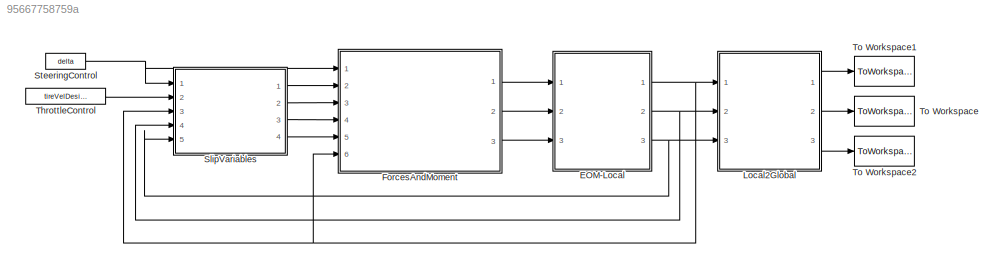
MODEL slx_95667758759a
KIND model
CONFIG AbsTol = auto
CONFIG EnableMultiTasking = off
CONFIG FixedStep = auto
CONFIG MaxStep = auto
CONFIG MinStep = auto
CONFIG RelTol = 1e-3
CONFIG SampleTimeConstraint = Unconstrained
CONFIG Solver = ode15s
CONFIG SolverName = ode15s
CONFIG StartTime = 0.0
CONFIG StopTime = 15
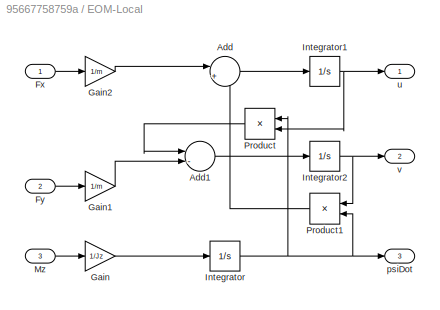
BLOCK [SubSystem] EOM-Local
  Ports = [3, 3]
  RequestExecContextInheritance = off
BLOCK [Sum] EOM-Local/Add
  IconShape = round
  InputSameDT = off
  Inputs = |++
  OutDataTypeStr = Inherit: Inherit via internal rule
  Ports = [2, 1]
  SaturateOnIntegerOverflow = off
BLOCK [Sum] EOM-Local/Add1
  IconShape = round
  InputSameDT = off
  Inputs = |-+
  OutDataTypeStr = Inherit: Inherit via internal rule
  Ports = [2, 1]
  SaturateOnIntegerOverflow = off
BLOCK [Inport] EOM-Local/Fx
  IconDisplay = Port number and signal name
BLOCK [Inport] EOM-Local/Fy
  IconDisplay = Port number and signal name
  Port = 2
BLOCK [Gain] EOM-Local/Gain
  Gain = 1/Jz
  OutDataTypeStr = Inherit: Inherit via internal rule
  ParamDataTypeStr = Inherit: Inherit via internal rule
  SaturateOnIntegerOverflow = off
BLOCK [Gain] EOM-Local/Gain1
  Gain = 1/m
  OutDataTypeStr = Inherit: Inherit via internal rule
  ParamDataTypeStr = Inherit: Inherit via internal rule
  SaturateOnIntegerOverflow = off
BLOCK [Gain] EOM-Local/Gain2
  Gain = 1/m
  OutDataTypeStr = Inherit: Inherit via internal rule
  ParamDataTypeStr = Inherit: Inherit via internal rule
  SaturateOnIntegerOverflow = off
BLOCK [Integrator] EOM-Local/Integrator
  InitialCondition = iniPsiDot
  Ports = [1, 1]
BLOCK [Integrator] EOM-Local/Integrator1
  InitialCondition = iniU
  Ports = [1, 1]
BLOCK [Integrator] EOM-Local/Integrator2
  InitialCondition = iniV
  Ports = [1, 1]
BLOCK [Inport] EOM-Local/Mz
  IconDisplay = Port number and signal name
  Port = 3
BLOCK [Product] EOM-Local/Product
  InputSameDT = off
  OutDataTypeStr = Inherit: Inherit via internal rule
  Ports = [2, 1]
  RndMeth = Floor
  SaturateOnIntegerOverflow = off
BLOCK [Product] EOM-Local/Product1
  InputSameDT = off
  OutDataTypeStr = Inherit: Inherit via internal rule
  Ports = [2, 1]
  RndMeth = Floor
  SaturateOnIntegerOverflow = off
BLOCK [Outport] EOM-Local/psiDot
  IconDisplay = Port number
  Port = 3
BLOCK [Outport] EOM-Local/u
  IconDisplay = Port number
BLOCK [Outport] EOM-Local/v
  IconDisplay = Port number
  Port = 2
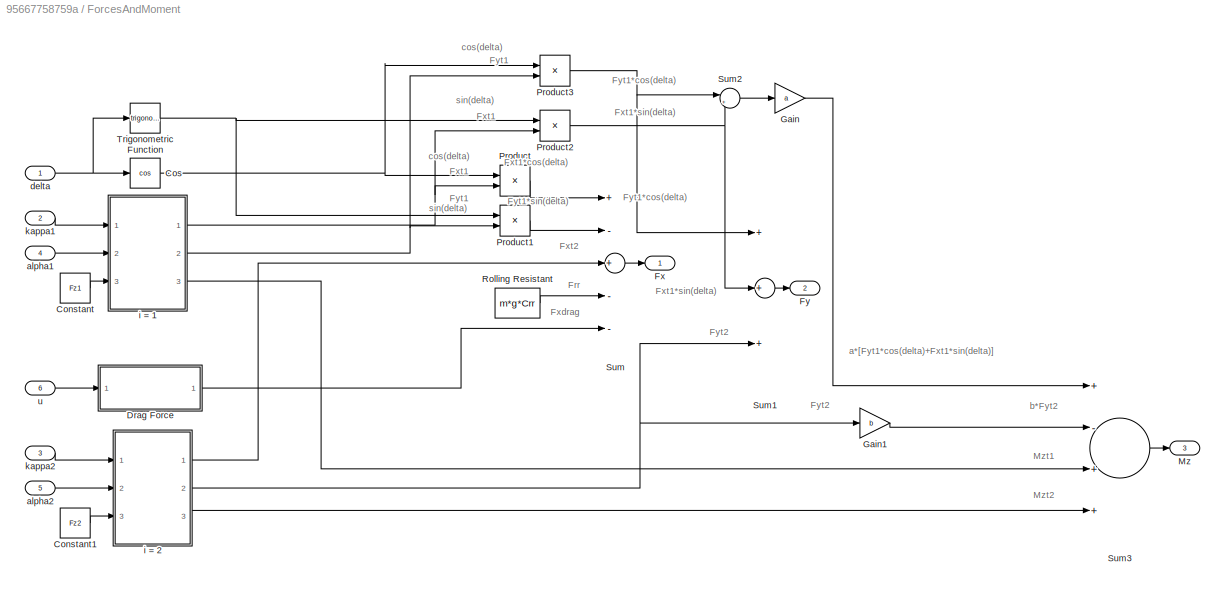
BLOCK [SubSystem] ForcesAndMoment
  Ports = [6, 3]
  RequestExecContextInheritance = off
BLOCK [Constant] ForcesAndMoment/Constant
  Value = Fz1
BLOCK [Constant] ForcesAndMoment/Constant1
  Value = Fz2
BLOCK [Trigonometry] ForcesAndMoment/Cos
  Operator = cos
  Ports = [1, 1]
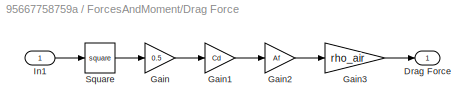
BLOCK [SubSystem] ForcesAndMoment/Drag Force
  Ports = [1, 1]
  RequestExecContextInheritance = off
BLOCK [Outport] ForcesAndMoment/Drag Force/Drag Force
  IconDisplay = Port number
BLOCK [Gain] ForcesAndMoment/Drag Force/Gain
  Gain = 0.5
  OutDataTypeStr = Inherit: Inherit via internal rule
  ParamDataTypeStr = Inherit: Inherit via internal rule
  SaturateOnIntegerOverflow = off
BLOCK [Gain] ForcesAndMoment/Drag Force/Gain1
  Gain = Cd
  OutDataTypeStr = Inherit: Inherit via internal rule
  ParamDataTypeStr = Inherit: Inherit via internal rule
  SaturateOnIntegerOverflow = off
BLOCK [Gain] ForcesAndMoment/Drag Force/Gain2
  Gain = Af
  OutDataTypeStr = Inherit: Inherit via internal rule
  ParamDataTypeStr = Inherit: Inherit via internal rule
  SaturateOnIntegerOverflow = off
BLOCK [Gain] ForcesAndMoment/Drag Force/Gain3
  Gain = rho_air
  OutDataTypeStr = Inherit: Inherit via internal rule
  ParamDataTypeStr = Inherit: Inherit via internal rule
  SaturateOnIntegerOverflow = off
BLOCK [Inport] ForcesAndMoment/Drag Force/In1
  IconDisplay = Port number
BLOCK [Math] ForcesAndMoment/Drag Force/Square
  Operator = square
  Ports = [1, 1]
BLOCK [Outport] ForcesAndMoment/Fx
  IconDisplay = Port number
BLOCK [Outport] ForcesAndMoment/Fy
  IconDisplay = Port number
  Port = 2
BLOCK [Gain] ForcesAndMoment/Gain
  Gain = a
  OutDataTypeStr = Inherit: Inherit via internal rule
  ParamDataTypeStr = Inherit: Inherit via internal rule
  SaturateOnIntegerOverflow = off
BLOCK [Gain] ForcesAndMoment/Gain1
  Gain = b
  OutDataTypeStr = Inherit: Inherit via internal rule
  ParamDataTypeStr = Inherit: Inherit via internal rule
  SaturateOnIntegerOverflow = off
BLOCK [Outport] ForcesAndMoment/Mz
  IconDisplay = Port number
  Port = 3
BLOCK [Product] ForcesAndMoment/Product
  InputSameDT = off
  OutDataTypeStr = Inherit: Inherit via internal rule
  Ports = [2, 1]
  RndMeth = Floor
  SaturateOnIntegerOverflow = off
BLOCK [Product] ForcesAndMoment/Product1
  InputSameDT = off
  OutDataTypeStr = Inherit: Inherit via internal rule
  Ports = [2, 1]
  RndMeth = Floor
  SaturateOnIntegerOverflow = off
BLOCK [Product] ForcesAndMoment/Product2
  InputSameDT = off
  OutDataTypeStr = Inherit: Inherit via internal rule
  Ports = [2, 1]
  RndMeth = Floor
  SaturateOnIntegerOverflow = off
BLOCK [Product] ForcesAndMoment/Product3
  InputSameDT = off
  OutDataTypeStr = Inherit: Inherit via internal rule
  Ports = [2, 1]
  RndMeth = Floor
  SaturateOnIntegerOverflow = off
BLOCK [Constant] ForcesAndMoment/Rolling Resistant
  Value = m*g*Crr
BLOCK [Sum] ForcesAndMoment/Sum
  InputSameDT = off
  Inputs = +-+--
  OutDataTypeStr = Inherit: Inherit via internal rule
  Ports = [5, 1]
  SaturateOnIntegerOverflow = off
BLOCK [Sum] ForcesAndMoment/Sum1
  InputSameDT = off
  Inputs = +++
  OutDataTypeStr = Inherit: Inherit via internal rule
  Ports = [3, 1]
  SaturateOnIntegerOverflow = off
BLOCK [Sum] ForcesAndMoment/Sum2
  IconShape = round
  InputSameDT = off
  Inputs = |++
  OutDataTypeStr = Inherit: Inherit via internal rule
  Ports = [2, 1]
  SaturateOnIntegerOverflow = off
BLOCK [Sum] ForcesAndMoment/Sum3
  InputSameDT = off
  Inputs = +-++
  OutDataTypeStr = Inherit: Inherit via internal rule
  Ports = [4, 1]
  SaturateOnIntegerOverflow = off
BLOCK [Trigonometry] ForcesAndMoment/Trigonometric Function
  Ports = [1, 1]
BLOCK [Inport] ForcesAndMoment/alpha1
  IconDisplay = Port number
  Port = 4
BLOCK [Inport] ForcesAndMoment/alpha2
  IconDisplay = Port number
  Port = 5
BLOCK [Inport] ForcesAndMoment/delta
  IconDisplay = Port number
BLOCK [ModelReference] ForcesAndMoment/i = 1
  ModelNameDialog = TireForces
  ModelReferenceVersion = 1.12
  Ports = [3, 3]
BLOCK [ModelReference] ForcesAndMoment/i = 2
  ModelNameDialog = TireForces
  ModelReferenceVersion = 1.12
  Ports = [3, 3]
BLOCK [Inport] ForcesAndMoment/kappa1
  IconDisplay = Port number
  Port = 2
BLOCK [Inport] ForcesAndMoment/kappa2
  IconDisplay = Port number
  Port = 3
BLOCK [Inport] ForcesAndMoment/u
  IconDisplay = Port number
  Port = 6
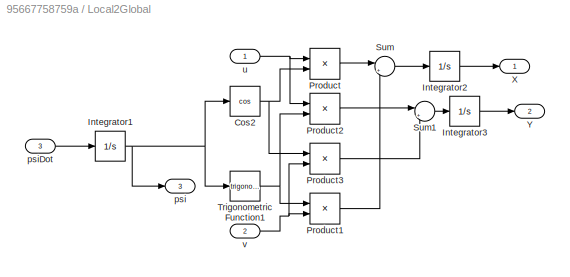
BLOCK [SubSystem] Local2Global
  Ports = [3, 3]
  RequestExecContextInheritance = off
BLOCK [Trigonometry] Local2Global/Cos2
  Operator = cos
  Ports = [1, 1]
BLOCK [Integrator] Local2Global/Integrator1
  Ports = [1, 1]
BLOCK [Integrator] Local2Global/Integrator2
  Ports = [1, 1]
BLOCK [Integrator] Local2Global/Integrator3
  Ports = [1, 1]
BLOCK [Product] Local2Global/Product
  InputSameDT = off
  OutDataTypeStr = Inherit: Inherit via internal rule
  Ports = [2, 1]
  RndMeth = Floor
  SaturateOnIntegerOverflow = off
BLOCK [Product] Local2Global/Product1
  InputSameDT = off
  OutDataTypeStr = Inherit: Inherit via internal rule
  Ports = [2, 1]
  RndMeth = Floor
  SaturateOnIntegerOverflow = off
BLOCK [Product] Local2Global/Product2
  InputSameDT = off
  OutDataTypeStr = Inherit: Inherit via internal rule
  Ports = [2, 1]
  RndMeth = Floor
  SaturateOnIntegerOverflow = off
BLOCK [Product] Local2Global/Product3
  InputSameDT = off
  OutDataTypeStr = Inherit: Inherit via internal rule
  Ports = [2, 1]
  RndMeth = Floor
  SaturateOnIntegerOverflow = off
BLOCK [Sum] Local2Global/Sum
  IconShape = round
  InputSameDT = off
  Inputs = |+-
  OutDataTypeStr = Inherit: Inherit via internal rule
  Ports = [2, 1]
  SaturateOnIntegerOverflow = off
BLOCK [Sum] Local2Global/Sum1
  IconShape = round
  InputSameDT = off
  Inputs = |++
  OutDataTypeStr = Inherit: Inherit via internal rule
  Ports = [2, 1]
  SaturateOnIntegerOverflow = off
BLOCK [Trigonometry] Local2Global/Trigonometric Function1
  Ports = [1, 1]
BLOCK [Outport] Local2Global/X
  IconDisplay = Port number
BLOCK [Outport] Local2Global/Y
  IconDisplay = Port number
  Port = 2
BLOCK [Outport] Local2Global/psi
  IconDisplay = Port number
  Port = 3
BLOCK [Inport] Local2Global/psiDot
  IconDisplay = Port number
  Port = 3
BLOCK [Inport] Local2Global/u
  IconDisplay = Port number
BLOCK [Inport] Local2Global/v
  IconDisplay = Port number
  Port = 2
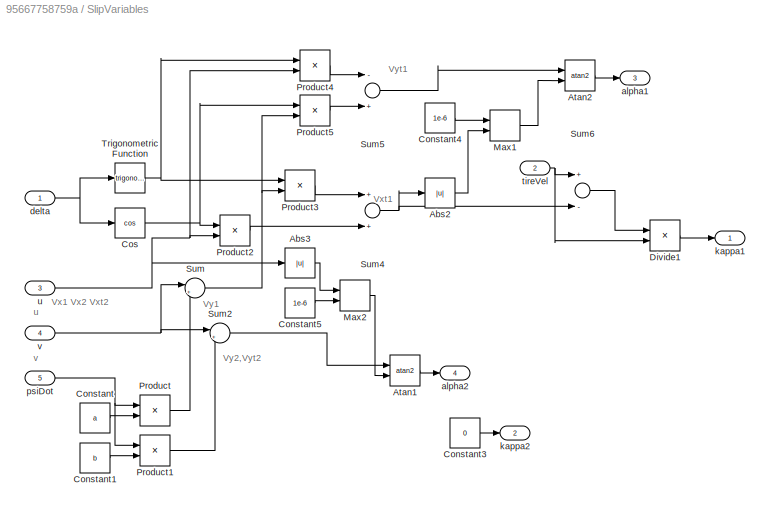
BLOCK [SubSystem] SlipVariables
  Ports = [5, 4]
  RequestExecContextInheritance = off
BLOCK [Abs] SlipVariables/Abs2
  SaturateOnIntegerOverflow = off
BLOCK [Abs] SlipVariables/Abs3
  SaturateOnIntegerOverflow = off
BLOCK [Trigonometry] SlipVariables/Atan1
  Operator = atan2
  Ports = [2, 1]
BLOCK [Trigonometry] SlipVariables/Atan2
  Operator = atan2
  Ports = [2, 1]
BLOCK [Constant] SlipVariables/Constant
  Value = a
BLOCK [Constant] SlipVariables/Constant1
  Value = b
BLOCK [Constant] SlipVariables/Constant3
  Value = 0
BLOCK [Constant] SlipVariables/Constant4
  Value = 1e-6
BLOCK [Constant] SlipVariables/Constant5
  Value = 1e-6
BLOCK [Trigonometry] SlipVariables/Cos
  Operator = cos
  Ports = [1, 1]
BLOCK [Product] SlipVariables/Divide1
  InputSameDT = off
  Inputs = */
  OutDataTypeStr = Inherit: Inherit via internal rule
  Ports = [2, 1]
  RndMeth = Floor
  SaturateOnIntegerOverflow = off
BLOCK [MinMax] SlipVariables/Max1
  Function = max
  InputSameDT = off
  Inputs = 2
  Ports = [2, 1]
  SaturateOnIntegerOverflow = off
BLOCK [MinMax] SlipVariables/Max2
  Function = max
  InputSameDT = off
  Inputs = 2
  Ports = [2, 1]
  SaturateOnIntegerOverflow = off
BLOCK [Product] SlipVariables/Product
  InputSameDT = off
  OutDataTypeStr = Inherit: Inherit via internal rule
  Ports = [2, 1]
  RndMeth = Floor
  SaturateOnIntegerOverflow = off
BLOCK [Product] SlipVariables/Product1
  InputSameDT = off
  OutDataTypeStr = Inherit: Inherit via internal rule
  Ports = [2, 1]
  RndMeth = Floor
  SaturateOnIntegerOverflow = off
BLOCK [Product] SlipVariables/Product2
  InputSameDT = off
  OutDataTypeStr = Inherit: Inherit via internal rule
  Ports = [2, 1]
  RndMeth = Floor
  SaturateOnIntegerOverflow = off
BLOCK [Product] SlipVariables/Product3
  InputSameDT = off
  OutDataTypeStr = Inherit: Inherit via internal rule
  Ports = [2, 1]
  RndMeth = Floor
  SaturateOnIntegerOverflow = off
BLOCK [Product] SlipVariables/Product4
  InputSameDT = off
  OutDataTypeStr = Inherit: Inherit via internal rule
  Ports = [2, 1]
  RndMeth = Floor
  SaturateOnIntegerOverflow = off
BLOCK [Product] SlipVariables/Product5
  InputSameDT = off
  OutDataTypeStr = Inherit: Inherit via internal rule
  Ports = [2, 1]
  RndMeth = Floor
  SaturateOnIntegerOverflow = off
BLOCK [Sum] SlipVariables/Sum
  IconShape = round
  InputSameDT = off
  Inputs = |++
  OutDataTypeStr = Inherit: Inherit via internal rule
  Ports = [2, 1]
  SaturateOnIntegerOverflow = off
BLOCK [Sum] SlipVariables/Sum2
  IconShape = round
  InputSameDT = off
  Inputs = |+-
  OutDataTypeStr = Inherit: Inherit via internal rule
  Ports = [2, 1]
  SaturateOnIntegerOverflow = off
BLOCK [Sum] SlipVariables/Sum4
  InputSameDT = off
  OutDataTypeStr = Inherit: Inherit via internal rule
  Ports = [2, 1]
  SaturateOnIntegerOverflow = off
BLOCK [Sum] SlipVariables/Sum5
  InputSameDT = off
  Inputs = -+
  OutDataTypeStr = Inherit: Inherit via internal rule
  Ports = [2, 1]
  SaturateOnIntegerOverflow = off
BLOCK [Sum] SlipVariables/Sum6
  InputSameDT = off
  Inputs = +-
  OutDataTypeStr = Inherit: Inherit via internal rule
  Ports = [2, 1]
  SaturateOnIntegerOverflow = off
BLOCK [Trigonometry] SlipVariables/Trigonometric Function
  Ports = [1, 1]
BLOCK [Outport] SlipVariables/alpha1
  IconDisplay = Port number
  Port = 3
BLOCK [Outport] SlipVariables/alpha2
  IconDisplay = Port number
  Port = 4
BLOCK [Inport] SlipVariables/delta
  IconDisplay = Port number
BLOCK [Outport] SlipVariables/kappa1
  IconDisplay = Port number
BLOCK [Outport] SlipVariables/kappa2
  IconDisplay = Port number
  Port = 2
BLOCK [Inport] SlipVariables/psiDot
  IconDisplay = Port number
  Port = 5
BLOCK [Inport] SlipVariables/tireVel
  IconDisplay = Port number
  Port = 2
BLOCK [Inport] SlipVariables/u
  IconDisplay = Port number and signal name
  Port = 3
BLOCK [Inport] SlipVariables/v
  IconDisplay = Port number and signal name
  Port = 4
BLOCK [Constant] SteeringControl
  Value = delta
BLOCK [Constant] ThrottleControl
  Value = tireVelDesired
BLOCK [ToWorkspace] To Workspace
  FixptAsFi = on
  MaxDataPoints = inf
  Ports = [1]
  SampleTime = -1
  SaveFormat = Timeseries
  VariableName = Y
BLOCK [ToWorkspace] To Workspace1
  FixptAsFi = on
  MaxDataPoints = inf
  Ports = [1]
  SampleTime = -1
  SaveFormat = Timeseries
  VariableName = X
BLOCK [ToWorkspace] To Workspace2
  FixptAsFi = on
  MaxDataPoints = inf
  Ports = [1]
  SampleTime = -1
  SaveFormat = Timeseries
  VariableName = psi
ANNOTATION ForcesAndMoment: Frr
ANNOTATION ForcesAndMoment: Fxdrag
ANNOTATION ForcesAndMoment: Fxt1
ANNOTATION ForcesAndMoment: Fxt1*cos(delta)
ANNOTATION ForcesAndMoment: Fxt1*sin(delta)
ANNOTATION ForcesAndMoment: Fxt2
ANNOTATION ForcesAndMoment: Fyt1
ANNOTATION ForcesAndMoment: Fyt1*cos(delta)
ANNOTATION ForcesAndMoment: Fyt1*sin(delta)
ANNOTATION ForcesAndMoment: Fyt2
ANNOTATION ForcesAndMoment: Mzt1
ANNOTATION ForcesAndMoment: Mzt2
ANNOTATION ForcesAndMoment: a*[Fyt1*cos(delta)+Fxt1*sin(delta)]
ANNOTATION ForcesAndMoment: b*Fyt2
ANNOTATION ForcesAndMoment: cos(delta)
ANNOTATION ForcesAndMoment: sin(delta)
ANNOTATION SlipVariables: Vx1 Vx2 Vxt2
ANNOTATION SlipVariables: Vxt1
ANNOTATION SlipVariables: Vy1
ANNOTATION SlipVariables: Vy2,Vyt2
ANNOTATION SlipVariables: Vyt1
ANNOTATION SlipVariables: u
ANNOTATION SlipVariables: v
LINE EOM-Local/Add1:1 -> EOM-Local/Integrator2:1
LINE EOM-Local/Add:1 -> EOM-Local/Integrator1:1
LINE EOM-Local/Fx:1 -> EOM-Local/Gain2:1
LINE EOM-Local/Fy:1 -> EOM-Local/Gain1:1
LINE EOM-Local/Gain1:1 -> EOM-Local/Add1:2
LINE EOM-Local/Gain2:1 -> EOM-Local/Add:1
LINE EOM-Local/Gain:1 -> EOM-Local/Integrator:1
NET EOM-Local/Integrator1:1 -> EOM-Local/Product:2, EOM-Local/u:1
NET EOM-Local/Integrator2:1 -> EOM-Local/Product1:1, EOM-Local/v:1
NET EOM-Local/Integrator:1 -> EOM-Local/Product1:2, EOM-Local/Product:1, EOM-Local/psiDot:1
LINE EOM-Local/Mz:1 -> EOM-Local/Gain:1
LINE EOM-Local/Product1:1 -> EOM-Local/Add:2
LINE EOM-Local/Product:1 -> EOM-Local/Add1:1
NET EOM-Local:1 -> ForcesAndMoment:6, Local2Global:1, SlipVariables:3
NET EOM-Local:2 -> Local2Global:2, SlipVariables:4
NET EOM-Local:3 -> Local2Global:3, SlipVariables:5
LINE ForcesAndMoment/Constant1:1 -> ForcesAndMoment/i = 2:3
LINE ForcesAndMoment/Constant:1 -> ForcesAndMoment/i = 1:3
NET ForcesAndMoment/Cos:1 -> ForcesAndMoment/Product3:1, ForcesAndMoment/Product:1
LINE ForcesAndMoment/Drag Force/Gain1:1 -> ForcesAndMoment/Drag Force/Gain2:1
LINE ForcesAndMoment/Drag Force/Gain2:1 -> ForcesAndMoment/Drag Force/Gain3:1
LINE ForcesAndMoment/Drag Force/Gain3:1 -> ForcesAndMoment/Drag Force/Drag Force:1
LINE ForcesAndMoment/Drag Force/Gain:1 -> ForcesAndMoment/Drag Force/Gain1:1
LINE ForcesAndMoment/Drag Force/In1:1 -> ForcesAndMoment/Drag Force/Square:1
LINE ForcesAndMoment/Drag Force/Square:1 -> ForcesAndMoment/Drag Force/Gain:1
LINE ForcesAndMoment/Drag Force:1 -> ForcesAndMoment/Sum:5
LINE ForcesAndMoment/Gain1:1 -> ForcesAndMoment/Sum3:2
LINE ForcesAndMoment/Gain:1 -> ForcesAndMoment/Sum3:1
LINE ForcesAndMoment/Product1:1 -> ForcesAndMoment/Sum:2
NET ForcesAndMoment/Product2:1 -> ForcesAndMoment/Sum1:2, ForcesAndMoment/Sum2:2
NET ForcesAndMoment/Product3:1 -> ForcesAndMoment/Sum1:1, ForcesAndMoment/Sum2:1
LINE ForcesAndMoment/Product:1 -> ForcesAndMoment/Sum:1
LINE ForcesAndMoment/Rolling Resistant:1 -> ForcesAndMoment/Sum:4
LINE ForcesAndMoment/Sum1:1 -> ForcesAndMoment/Fy:1
LINE ForcesAndMoment/Sum2:1 -> ForcesAndMoment/Gain:1
LINE ForcesAndMoment/Sum3:1 -> ForcesAndMoment/Mz:1
LINE ForcesAndMoment/Sum:1 -> ForcesAndMoment/Fx:1
NET ForcesAndMoment/Trigonometric Function:1 -> ForcesAndMoment/Product1:1, ForcesAndMoment/Product2:1
LINE ForcesAndMoment/alpha1:1 -> ForcesAndMoment/i = 1:2
LINE ForcesAndMoment/alpha2:1 -> ForcesAndMoment/i = 2:2
NET ForcesAndMoment/delta:1 -> ForcesAndMoment/Cos:1, ForcesAndMoment/Trigonometric Function:1
NET ForcesAndMoment/i = 1:1 -> ForcesAndMoment/Product2:2, ForcesAndMoment/Product:2
NET ForcesAndMoment/i = 1:2 -> ForcesAndMoment/Product1:2, ForcesAndMoment/Product3:2
LINE ForcesAndMoment/i = 1:3 -> ForcesAndMoment/Sum3:3
LINE ForcesAndMoment/i = 2:1 -> ForcesAndMoment/Sum:3
NET ForcesAndMoment/i = 2:2 -> ForcesAndMoment/Gain1:1, ForcesAndMoment/Sum1:3
LINE ForcesAndMoment/i = 2:3 -> ForcesAndMoment/Sum3:4
LINE ForcesAndMoment/kappa1:1 -> ForcesAndMoment/i = 1:1
LINE ForcesAndMoment/kappa2:1 -> ForcesAndMoment/i = 2:1
LINE ForcesAndMoment/u:1 -> ForcesAndMoment/Drag Force:1
LINE ForcesAndMoment:1 -> EOM-Local:1
LINE ForcesAndMoment:2 -> EOM-Local:2
LINE ForcesAndMoment:3 -> EOM-Local:3
NET Local2Global/Cos2:1 -> Local2Global/Product3:1, Local2Global/Product:2
NET Local2Global/Integrator1:1 -> Local2Global/Cos2:1, Local2Global/Trigonometric Function1:1, Local2Global/psi:1
LINE Local2Global/Integrator2:1 -> Local2Global/X:1
LINE Local2Global/Integrator3:1 -> Local2Global/Y:1
LINE Local2Global/Product1:1 -> Local2Global/Sum:2
LINE Local2Global/Product2:1 -> Local2Global/Sum1:1
LINE Local2Global/Product3:1 -> Local2Global/Sum1:2
LINE Local2Global/Product:1 -> Local2Global/Sum:1
LINE Local2Global/Sum1:1 -> Local2Global/Integrator3:1
LINE Local2Global/Sum:1 -> Local2Global/Integrator2:1
NET Local2Global/Trigonometric Function1:1 -> Local2Global/Product1:1, Local2Global/Product2:2
LINE Local2Global/psiDot:1 -> Local2Global/Integrator1:1
NET Local2Global/u:1 -> Local2Global/Product2:1, Local2Global/Product:1
NET Local2Global/v:1 -> Local2Global/Product1:2, Local2Global/Product3:2
LINE Local2Global:1 -> To Workspace1:1
LINE Local2Global:2 -> To Workspace:1
LINE Local2Global:3 -> To Workspace2:1
LINE SlipVariables/Abs2:1 -> SlipVariables/Max1:2
LINE SlipVariables/Abs3:1 -> SlipVariables/Max2:1
LINE SlipVariables/Atan1:1 -> SlipVariables/alpha2:1
LINE SlipVariables/Atan2:1 -> SlipVariables/alpha1:1
LINE SlipVariables/Constant1:1 -> SlipVariables/Product1:2
LINE SlipVariables/Constant3:1 -> SlipVariables/kappa2:1
LINE SlipVariables/Constant4:1 -> SlipVariables/Max1:1
LINE SlipVariables/Constant5:1 -> SlipVariables/Max2:2
LINE SlipVariables/Constant:1 -> SlipVariables/Product:2
NET SlipVariables/Cos:1 -> SlipVariables/Product2:1, SlipVariables/Product5:1
LINE SlipVariables/Divide1:1 -> SlipVariables/kappa1:1
LINE SlipVariables/Max1:1 -> SlipVariables/Atan2:2
LINE SlipVariables/Max2:1 -> SlipVariables/Atan1:2
LINE SlipVariables/Product1:1 -> SlipVariables/Sum2:2
LINE SlipVariables/Product2:1 -> SlipVariables/Sum4:2
LINE SlipVariables/Product3:1 -> SlipVariables/Sum4:1
LINE SlipVariables/Product4:1 -> SlipVariables/Sum5:1
LINE SlipVariables/Product5:1 -> SlipVariables/Sum5:2
LINE SlipVariables/Product:1 -> SlipVariables/Sum:2
LINE SlipVariables/Sum2:1 -> SlipVariables/Atan1:1
NET SlipVariables/Sum4:1 -> SlipVariables/Abs2:1, SlipVariables/Sum6:2
LINE SlipVariables/Sum5:1 -> SlipVariables/Atan2:1
LINE SlipVariables/Sum6:1 -> SlipVariables/Divide1:1
NET SlipVariables/Sum:1 -> SlipVariables/Product3:2, SlipVariables/Product5:2
NET SlipVariables/Trigonometric Function:1 -> SlipVariables/Product3:1, SlipVariables/Product4:1
NET SlipVariables/delta:1 -> SlipVariables/Cos:1, SlipVariables/Trigonometric Function:1
NET SlipVariables/psiDot:1 -> SlipVariables/Product1:1, SlipVariables/Product:1
NET SlipVariables/tireVel:1 -> SlipVariables/Divide1:2, SlipVariables/Sum6:1
NET SlipVariables/u:1 -> SlipVariables/Abs3:1, SlipVariables/Product2:2, SlipVariables/Product4:2
NET SlipVariables/v:1 -> SlipVariables/Sum2:1, SlipVariables/Sum:1
LINE SlipVariables:1 -> ForcesAndMoment:2
LINE SlipVariables:2 -> ForcesAndMoment:3
LINE SlipVariables:3 -> ForcesAndMoment:4
LINE SlipVariables:4 -> ForcesAndMoment:5
NET SteeringControl:1 -> ForcesAndMoment:1, SlipVariables:1
LINE ThrottleControl:1 -> SlipVariables:2
note: NET lines group one-source signal fan-out (src -> all destinations, sorted); 1:1 wires keep LINE
